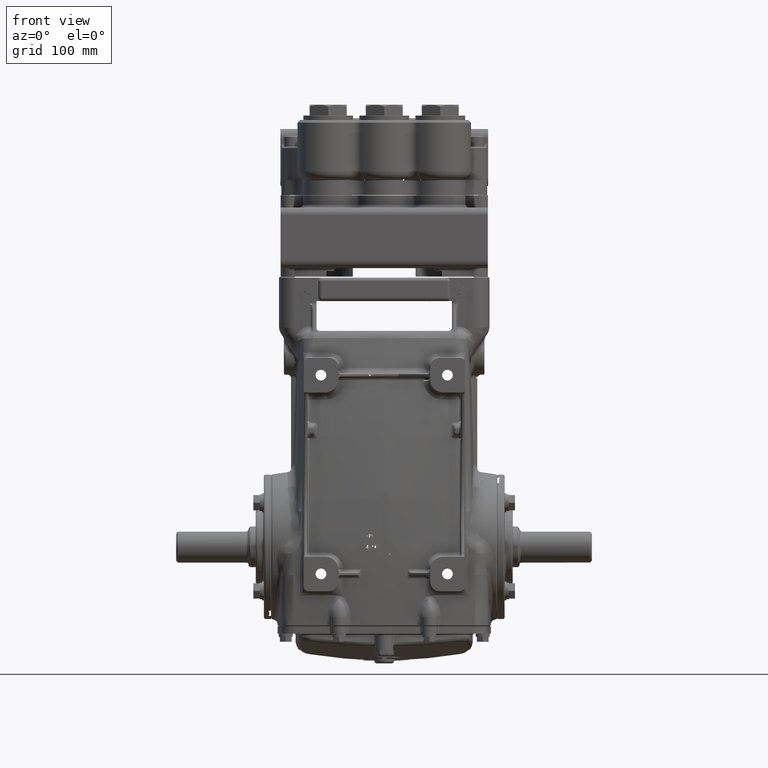
[diagram: clean part render]
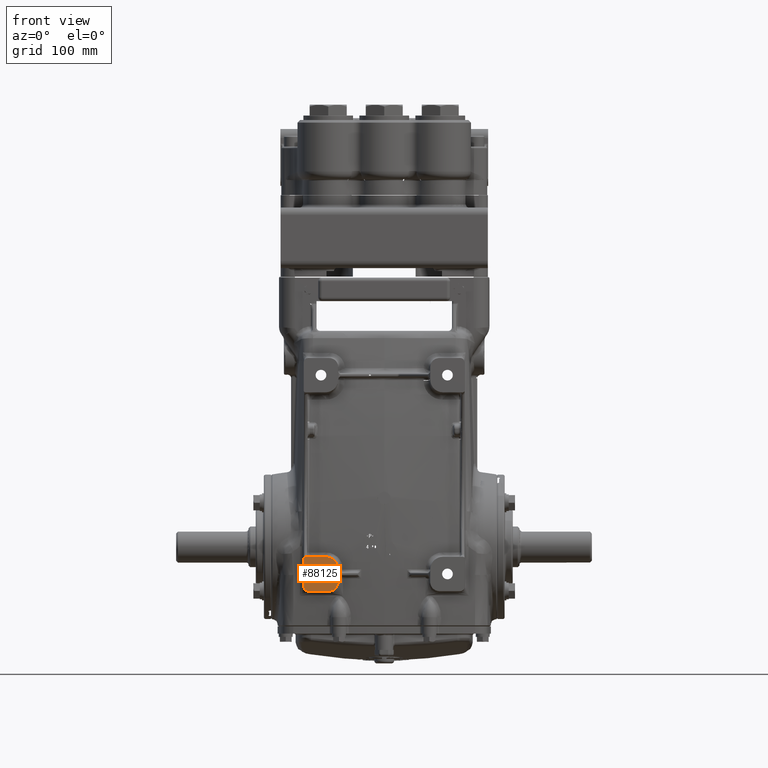
[diagram: same view with one face highlighted and labeled with its STEP entity id]
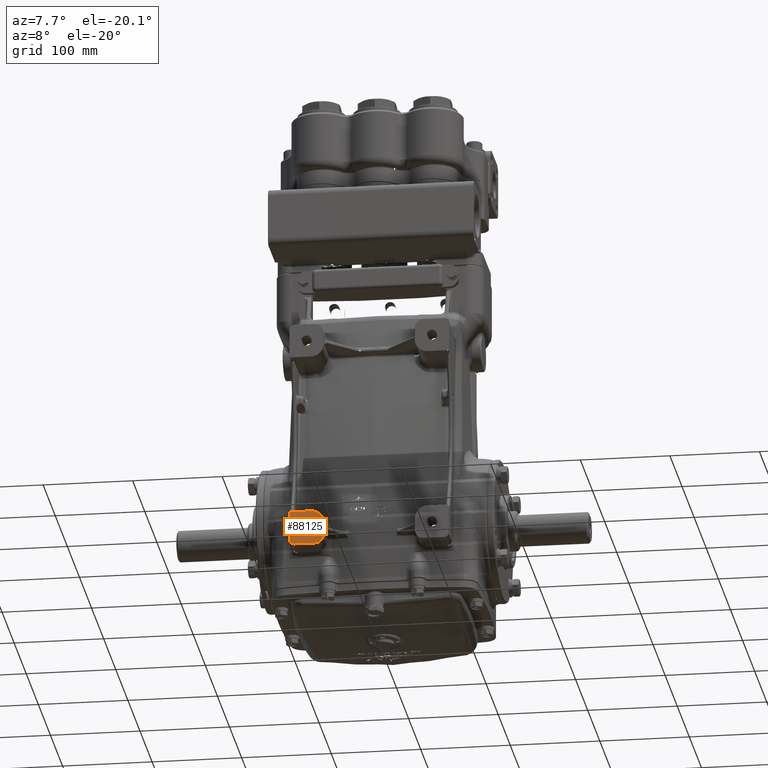
[diagram: same view with one face highlighted and labeled with its STEP entity id]
A machine part, front view. The second image highlights one B-rep face of the part: STEP entity #88125.
A second angle (auxiliary view) of the same face is appended — the face is thin or edge-on in the first view.
In plain terms, the highlighted planar face has unit normal (0, -1, 0).
Its self-contained STEP definition (entity closure, byte-faithful):
#378 = ORIENTED_EDGE ( 'NONE', *, *, #104693, .F. ) ;
#821 = CARTESIAN_POINT ( 'NONE',  ( -3.497893122359637008, -4.921259842519685179, -0.4810763468023293021 ) ) ;
#1788 = EDGE_LOOP ( 'NONE', ( #84094, #23505, #92642, #378, #34627, #106894, #129267, #131202, #5435, #124827 ) ) ;
#1845 = CARTESIAN_POINT ( 'NONE',  ( -3.503937007874016185, -4.921259842519685179, -0.4330708661417321248 ) ) ;
#2668 = VERTEX_POINT ( 'NONE', #39964 ) ;
#3487 = CARTESIAN_POINT ( 'NONE',  ( -2.007874015748031482, -4.921259842519685179, -0.4330708661417323468 ) ) ;
#4372 = EDGE_CURVE ( 'NONE', #84354, #52365, #121297, .T. ) ;
#4396 = CARTESIAN_POINT ( 'NONE',  ( -3.503937007874016185, -4.921259842519685179, -0.5071693245324403465 ) ) ;
#5435 = ORIENTED_EDGE ( 'NONE', *, *, #17245, .T. ) ;
#6994 = VERTEX_POINT ( 'NONE', #13736 ) ;
#7163 = EDGE_CURVE ( 'NONE', #2668, #52365, #41306, .T. ) ;
#7808 = CARTESIAN_POINT ( 'NONE',  ( -2.559055118110236560, -4.921259842519685179, -0.9842519685039369248 ) ) ;
#9418 = VECTOR ( 'NONE', #68633, 39.37007874015748143 ) ;
#10189 = DIRECTION ( 'NONE',  ( -0.0000000000000000000, -1.000000000000000000, -0.0000000000000000000 ) ) ;
#12294 = AXIS2_PLACEMENT_3D ( 'NONE', #105185, #10189, #52515 ) ;
#13113 = B_SPLINE_CURVE_WITH_KNOTS ( 'NONE', 3,
 ( #34475, #76751, #119031, #24075 ),
 .UNSPECIFIED., .F., .F.,
 ( 4, 4 ),
 ( 1.734723475976807094E-18, 0.0001719451205968717167 ),
 .UNSPECIFIED. ) ;
#13736 = CARTESIAN_POINT ( 'NONE',  ( -2.755905511811550745, -4.921259842519685179, -0.9481299212598436332 ) ) ;
#14789 = CARTESIAN_POINT ( 'NONE',  ( -3.501382793678153860, -4.921259842519686067, -0.4893716595227328714 ) ) ;
#17245 = EDGE_CURVE ( 'NONE', #94337, #117023, #46054, .T. ) ;
#19133 = DIRECTION ( 'NONE',  ( 0.0000000000000000000, 0.0000000000000000000, -1.000000000000000000 ) ) ;
#22601 = CARTESIAN_POINT ( 'NONE',  ( -3.494823357746523751, -4.921259842519685179, -0.4750392698717546547 ) ) ;
#23505 = ORIENTED_EDGE ( 'NONE', *, *, #4372, .F. ) ;
#24075 = CARTESIAN_POINT ( 'NONE',  ( -3.497893122359637008, -4.921259842519685179, -0.4810763468023293021 ) ) ;
#25072 = EDGE_CURVE ( 'NONE', #6994, #59876, #48552, .T. ) ;
#25381 = DIRECTION ( 'NONE',  ( -0.0000000000000000000, -1.000000000000000000, -0.0000000000000000000 ) ) ;
#25499 = DIRECTION ( 'NONE',  ( 0.0000000000000000000, -1.000000000000000000, 0.0000000000000000000 ) ) ;
#26355 = CARTESIAN_POINT ( 'NONE',  ( -3.503937007874016185, -4.921259842519685179, -1.929133858267716661 ) ) ;
#27662 = CIRCLE ( 'NONE', #105129, 0.5511811023622048555 ) ;
#28181 = AXIS2_PLACEMENT_3D ( 'NONE', #71838, #114102, #19133 ) ;
#29005 = CARTESIAN_POINT ( 'NONE',  ( -3.503937007874016185, -4.921259842519685179, -0.5071693245324403465 ) ) ;
#29667 = CARTESIAN_POINT ( 'NONE',  ( -3.307086614173228689, -4.921259842519685179, -1.732283464566929387 ) ) ;
#34475 = CARTESIAN_POINT ( 'NONE',  ( -3.494823357746523751, -4.921259842519685179, -0.4750392698717546547 ) ) ;
#34627 = ORIENTED_EDGE ( 'NONE', *, *, #116301, .T. ) ;
#35898 = FACE_OUTER_BOUND ( 'NONE', #1788, .T. ) ;
#39093 = EDGE_CURVE ( 'NONE', #48325, #46211, #100892, .T. ) ;
#39964 = CARTESIAN_POINT ( 'NONE',  ( -3.503937007874016185, -4.921259842519685179, -1.732283464566929387 ) ) ;
#41202 = AXIS2_PLACEMENT_3D ( 'NONE', #49767, #92063, #134323 ) ;
#41306 = CIRCLE ( 'NONE', #136482, 0.1968503937007873017 ) ;
#43213 = LINE ( 'NONE', #75046, #61943 ) ;
#44174 = DIRECTION ( 'NONE',  ( 1.000000000000000000, 0.0000000000000000000, -1.369518533665900065E-16 ) ) ;
#44500 = EDGE_CURVE ( 'NONE', #2668, #117023, #43213, .T. ) ;
#45791 = DIRECTION ( 'NONE',  ( -1.826024711554533174E-16, 0.0000000000000000000, -1.000000000000000000 ) ) ;
#46054 = B_SPLINE_CURVE_WITH_KNOTS ( 'NONE', 3,
 ( #67495, #109760, #14789, #57091, #99361, #4396 ),
 .UNSPECIFIED., .F., .F.,
 ( 4, 2, 4 ),
 ( 3.103167691559091397E-17, 0.0003407475794177710010, 0.0006814951588355109939 ),
 .UNSPECIFIED. ) ;
#46211 = VERTEX_POINT ( 'NONE', #22601 ) ;
#47933 = CARTESIAN_POINT ( 'NONE',  ( -2.007874015748031482, -4.921259842519685179, -0.9842519685039370358 ) ) ;
#48325 = VERTEX_POINT ( 'NONE', #68465 ) ;
#48552 = CIRCLE ( 'NONE', #126038, 0.2329724409448815925 ) ;
#49767 = CARTESIAN_POINT ( 'NONE',  ( -3.425196850393701364, -4.921259842519685179, -0.5118110236220471121 ) ) ;
#50119 = DIRECTION ( 'NONE',  ( 0.0000000000000000000, -1.000000000000000000, 0.0000000000000000000 ) ) ;
#52365 = VERTEX_POINT ( 'NONE', #57866 ) ;
#52515 = DIRECTION ( 'NONE',  ( 0.0000000000000000000, 0.0000000000000000000, -1.000000000000000000 ) ) ;
#54355 = CIRCLE ( 'NONE', #12294, 0.2329724409448815925 ) ;
#57091 = CARTESIAN_POINT ( 'NONE',  ( -3.503410565396904985, -4.921259842519684291, -0.4980978938802551048 ) ) ;
#57866 = CARTESIAN_POINT ( 'NONE',  ( -3.307086614173228689, -4.921259842519685179, -1.929133858267716661 ) ) ;
#59876 = VERTEX_POINT ( 'NONE', #116843 ) ;
#61943 = VECTOR ( 'NONE', #117325, 39.37007874015748143 ) ;
#67495 = CARTESIAN_POINT ( 'NONE',  ( -3.497893122359637008, -4.921259842519685179, -0.4810763468023293021 ) ) ;
#67653 = DIRECTION ( 'NONE',  ( 0.0000000000000000000, 0.0000000000000000000, -1.000000000000000000 ) ) ;
#67768 = DIRECTION ( 'NONE',  ( 0.0000000000000000000, -0.0000000000000000000, -1.000000000000000000 ) ) ;
#68465 = CARTESIAN_POINT ( 'NONE',  ( -3.425196850393701364, -4.921259842519685179, -0.4330708661417321248 ) ) ;
#68633 = DIRECTION ( 'NONE',  ( -1.000000000000000000, -0.0000000000000000000, 1.826024711554534160E-16 ) ) ;
#69578 = VECTOR ( 'NONE', #44174, 39.37007874015748143 ) ;
#71838 = CARTESIAN_POINT ( 'NONE',  ( -2.401574803149606918, -4.921259842519685179, -1.535433070866142113 ) ) ;
#71940 = DIRECTION ( 'NONE',  ( 0.0000000000000000000, -1.000000000000000000, 0.0000000000000000000 ) ) ;
#73045 = AXIS2_PLACEMENT_3D ( 'NONE', #120447, #25499, #67768 ) ;
#73588 = ORIENTED_EDGE ( 'NONE', *, *, #25072, .F. ) ;
#74728 = CARTESIAN_POINT ( 'NONE',  ( -2.007874015748031926, -4.921259842519685179, -1.535433070866142113 ) ) ;
#75046 = CARTESIAN_POINT ( 'NONE',  ( -3.503937007874016185, -4.921259842519685179, -0.4330708661417321248 ) ) ;
#76751 = CARTESIAN_POINT ( 'NONE',  ( -3.495878278499195080, -4.921259842519685179, -0.4770367391260433854 ) ) ;
#78174 = PLANE ( 'NONE',  #73045 ) ;
#79446 = EDGE_CURVE ( 'NONE', #46211, #94337, #13113, .T. ) ;
#80643 = EDGE_LOOP ( 'NONE', ( #106121, #73588 ) ) ;
#82551 = EDGE_CURVE ( 'NONE', #48325, #127654, #96822, .T. ) ;
#84094 = ORIENTED_EDGE ( 'NONE', *, *, #7163, .T. ) ;
#84354 = VERTEX_POINT ( 'NONE', #113073 ) ;
#87949 = CIRCLE ( 'NONE', #28181, 0.3937007874015748810 ) ;
#88125 = ADVANCED_FACE ( 'NONE', ( #130850, #35898 ), #78174, .T. ) ;
#92063 = DIRECTION ( 'NONE',  ( 0.0000000000000000000, -1.000000000000000000, 0.0000000000000000000 ) ) ;
#92405 = DIRECTION ( 'NONE',  ( 0.0000000000000000000, 0.0000000000000000000, -1.000000000000000000 ) ) ;
#92642 = ORIENTED_EDGE ( 'NONE', *, *, #102858, .T. ) ;
#94337 = VERTEX_POINT ( 'NONE', #821 ) ;
#94881 = VECTOR ( 'NONE', #45791, 39.37007874015748143 ) ;
#96822 = LINE ( 'NONE', #1845, #69578 ) ;
#98126 = EDGE_CURVE ( 'NONE', #59876, #6994, #54355, .T. ) ;
#98456 = LINE ( 'NONE', #3487, #94881 ) ;
#99361 = CARTESIAN_POINT ( 'NONE',  ( -3.503937007874016185, -4.921259842519685179, -0.5026332440857571582 ) ) ;
#100892 = CIRCLE ( 'NONE', #41202, 0.07874015748031495954 ) ;
#102858 = EDGE_CURVE ( 'NONE', #84354, #135518, #87949, .T. ) ;
#104693 = EDGE_CURVE ( 'NONE', #105703, #135518, #98456, .T. ) ;
#105129 = AXIS2_PLACEMENT_3D ( 'NONE', #7808, #50119, #92405 ) ;
#105185 = CARTESIAN_POINT ( 'NONE',  ( -2.755905511811550745, -4.921259842519685179, -1.181102362204725198 ) ) ;
#105703 = VERTEX_POINT ( 'NONE', #47933 ) ;
#106121 = ORIENTED_EDGE ( 'NONE', *, *, #98126, .F. ) ;
#106894 = ORIENTED_EDGE ( 'NONE', *, *, #82551, .F. ) ;
#109760 = CARTESIAN_POINT ( 'NONE',  ( -3.499887958571422431, -4.921259842519416061, -0.4851503109285396076 ) ) ;
#113073 = CARTESIAN_POINT ( 'NONE',  ( -2.401574803149606918, -4.921259842519685179, -1.929133858267716883 ) ) ;
#114102 = DIRECTION ( 'NONE',  ( 0.0000000000000000000, -1.000000000000000000, 0.0000000000000000000 ) ) ;
#114207 = DIRECTION ( 'NONE',  ( 0.0000000000000000000, 0.0000000000000000000, -1.000000000000000000 ) ) ;
#116301 = EDGE_CURVE ( 'NONE', #105703, #127654, #27662, .T. ) ;
#116843 = CARTESIAN_POINT ( 'NONE',  ( -2.755905511811550745, -4.921259842519685179, -1.414074803149606874 ) ) ;
#117023 = VERTEX_POINT ( 'NONE', #29005 ) ;
#117325 = DIRECTION ( 'NONE',  ( -0.0000000000000000000, -0.0000000000000000000, 1.000000000000000000 ) ) ;
#119031 = CARTESIAN_POINT ( 'NONE',  ( -3.496900669208785839, -4.921259842519685179, -0.4790495044432129257 ) ) ;
#120326 = CARTESIAN_POINT ( 'NONE',  ( -2.755905511811550745, -4.921259842519685179, -1.181102362204725198 ) ) ;
#120447 = CARTESIAN_POINT ( 'NONE',  ( -3.503937007874016185, -4.921259842519685179, -0.4330708661417321248 ) ) ;
#121297 = LINE ( 'NONE', #26355, #9418 ) ;
#124827 = ORIENTED_EDGE ( 'NONE', *, *, #44500, .F. ) ;
#126038 = AXIS2_PLACEMENT_3D ( 'NONE', #120326, #25381, #67653 ) ;
#127654 = VERTEX_POINT ( 'NONE', #132879 ) ;
#129267 = ORIENTED_EDGE ( 'NONE', *, *, #39093, .T. ) ;
#130850 = FACE_BOUND ( 'NONE', #80643, .T. ) ;
#131202 = ORIENTED_EDGE ( 'NONE', *, *, #79446, .T. ) ;
#132879 = CARTESIAN_POINT ( 'NONE',  ( -2.559055118110236560, -4.921259842519685179, -0.4330708661417322913 ) ) ;
#134323 = DIRECTION ( 'NONE',  ( 0.0000000000000000000, 0.0000000000000000000, -1.000000000000000000 ) ) ;
#135518 = VERTEX_POINT ( 'NONE', #74728 ) ;
#136482 = AXIS2_PLACEMENT_3D ( 'NONE', #29667, #71940, #114207 ) ;